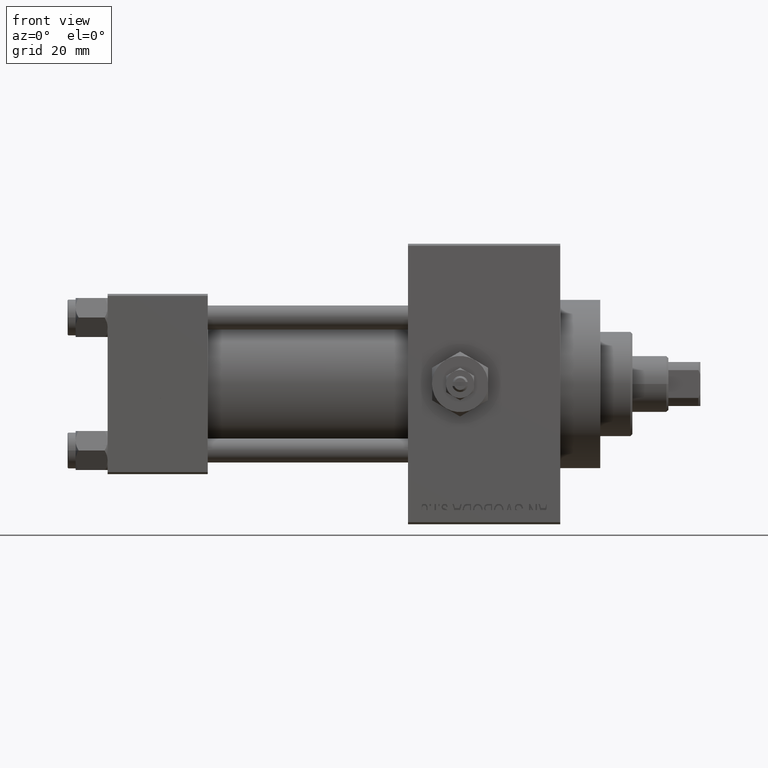
[diagram: clean part render]
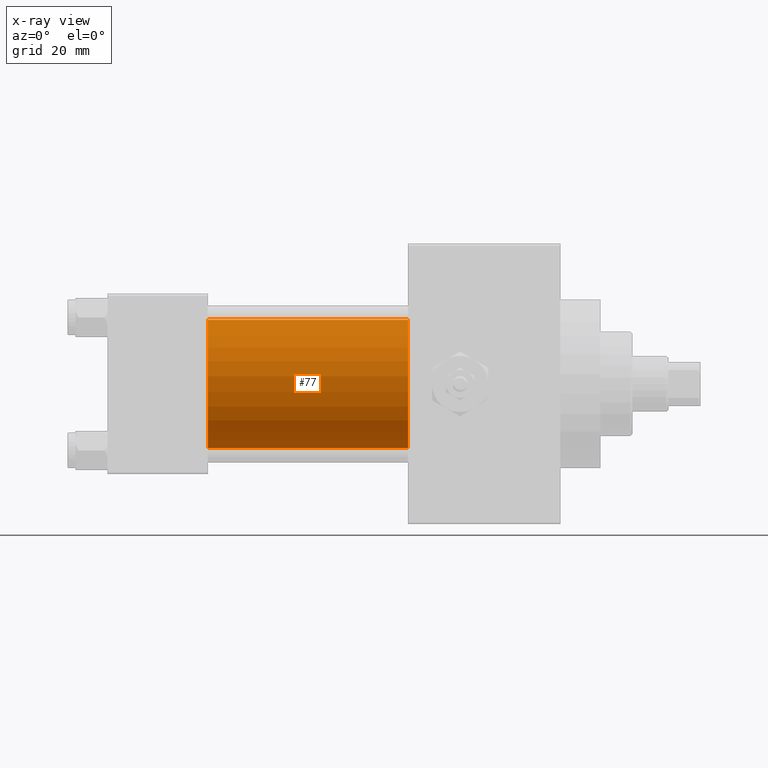
[diagram: x-ray — body ghosted, one internal face saturated and labeled with its STEP entity id]
A machine part, front view, then the same camera in x-ray: the body is ghosted and one INTERNAL B-rep face — a face not visible from any outside direction — is saturated and labeled: STEP entity #77.
In plain terms, the highlighted cylindrical surface (partial cylindrical patch) has radius 16 mm, axis along (-1, -0, -0).
Its self-contained STEP definition (entity closure, byte-faithful):
#77 = ADVANCED_FACE ( 'NONE', ( #14700 ), #48589, .F. ) ;
#2761 = AXIS2_PLACEMENT_3D ( 'NONE', #40282, #22121, #17949 ) ;
#3269 = VERTEX_POINT ( 'NONE', #37340 ) ;
#3541 = CARTESIAN_POINT ( 'NONE',  ( 75.00000000000001421, -6.426503353294456087E-16, -16.00000000000000000 ) ) ;
#3558 = EDGE_CURVE ( 'NONE', #3269, #37574, #29134, .T. ) ;
#3627 = CARTESIAN_POINT ( 'NONE',  ( 75.00000000000001421, -2.602085213965210642E-15, 0.000000000000000000 ) ) ;
#6142 = ORIENTED_EDGE ( 'NONE', *, *, #32560, .F. ) ;
#6447 = AXIS2_PLACEMENT_3D ( 'NONE', #21688, #36672, #26350 ) ;
#6778 = AXIS2_PLACEMENT_3D ( 'NONE', #3627, #7786, #18163 ) ;
#7786 = DIRECTION ( 'NONE',  ( -1.000000000000000000, -0.000000000000000000, -0.000000000000000000 ) ) ;
#8343 = CARTESIAN_POINT ( 'NONE',  ( 75.00000000000001421, -2.602085213965210642E-15, 16.00000000000000000 ) ) ;
#10169 = CARTESIAN_POINT ( 'NONE',  ( 75.00000000000001421, -2.602085213965210642E-15, 16.00000000000000000 ) ) ;
#11415 = EDGE_CURVE ( 'NONE', #41743, #32443, #34659, .T. ) ;
#14700 = FACE_OUTER_BOUND ( 'NONE', #34180, .T. ) ;
#17949 = DIRECTION ( 'NONE',  ( 0.000000000000000000, 0.000000000000000000, -1.000000000000000000 ) ) ;
#18163 = DIRECTION ( 'NONE',  ( 0.000000000000000000, 0.000000000000000000, 1.000000000000000000 ) ) ;
#19119 = ORIENTED_EDGE ( 'NONE', *, *, #3558, .T. ) ;
#21688 = CARTESIAN_POINT ( 'NONE',  ( 75.00000000000001421, -2.602085213965210642E-15, 0.000000000000000000 ) ) ;
#22121 = DIRECTION ( 'NONE',  ( 1.000000000000000000, 0.000000000000000000, 0.000000000000000000 ) ) ;
#25839 = VECTOR ( 'NONE', #38098, 1000.000000000000000 ) ;
#25843 = ORIENTED_EDGE ( 'NONE', *, *, #38317, .T. ) ;
#26350 = DIRECTION ( 'NONE',  ( 0.000000000000000000, 0.000000000000000000, -1.000000000000000000 ) ) ;
#29134 = LINE ( 'NONE', #3541, #46115 ) ;
#32443 = VERTEX_POINT ( 'NONE', #47410 ) ;
#32560 = EDGE_CURVE ( 'NONE', #32443, #37574, #42791, .T. ) ;
#33174 = CIRCLE ( 'NONE', #6447, 16.00000000000000000 ) ;
#34180 = EDGE_LOOP ( 'NONE', ( #25843, #19119, #6142, #43940 ) ) ;
#34365 = CARTESIAN_POINT ( 'NONE',  ( 25.00000000000000000, -6.426503353294456087E-16, -16.00000000000000000 ) ) ;
#34659 = LINE ( 'NONE', #8343, #25839 ) ;
#36672 = DIRECTION ( 'NONE',  ( 1.000000000000000000, 0.000000000000000000, 0.000000000000000000 ) ) ;
#37340 = CARTESIAN_POINT ( 'NONE',  ( 75.00000000000001421, -6.426503353294456087E-16, -16.00000000000000000 ) ) ;
#37574 = VERTEX_POINT ( 'NONE', #34365 ) ;
#38098 = DIRECTION ( 'NONE',  ( -1.000000000000000000, -0.000000000000000000, -0.000000000000000000 ) ) ;
#38317 = EDGE_CURVE ( 'NONE', #41743, #3269, #33174, .T. ) ;
#40282 = CARTESIAN_POINT ( 'NONE',  ( 25.00000000000000000, -2.602085213965210642E-15, 0.000000000000000000 ) ) ;
#41743 = VERTEX_POINT ( 'NONE', #10169 ) ;
#42791 = CIRCLE ( 'NONE', #2761, 16.00000000000000000 ) ;
#43940 = ORIENTED_EDGE ( 'NONE', *, *, #11415, .F. ) ;
#44088 = DIRECTION ( 'NONE',  ( -1.000000000000000000, -0.000000000000000000, -0.000000000000000000 ) ) ;
#46115 = VECTOR ( 'NONE', #44088, 1000.000000000000000 ) ;
#47410 = CARTESIAN_POINT ( 'NONE',  ( 25.00000000000000000, -2.602085213965210642E-15, 16.00000000000000000 ) ) ;
#48589 = CYLINDRICAL_SURFACE ( 'NONE', #6778, 16.00000000000000000 ) ;